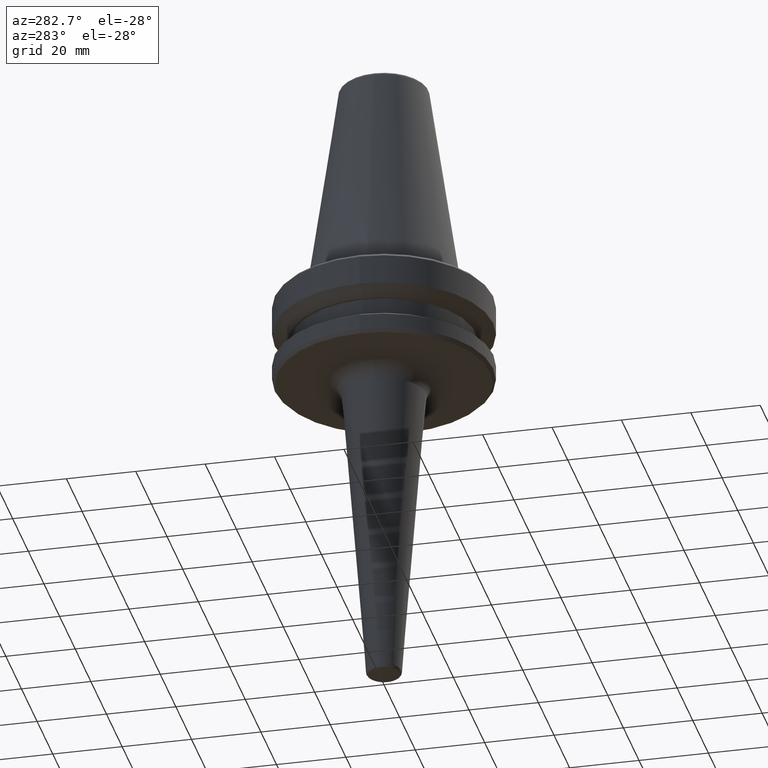
[diagram: clean part render]
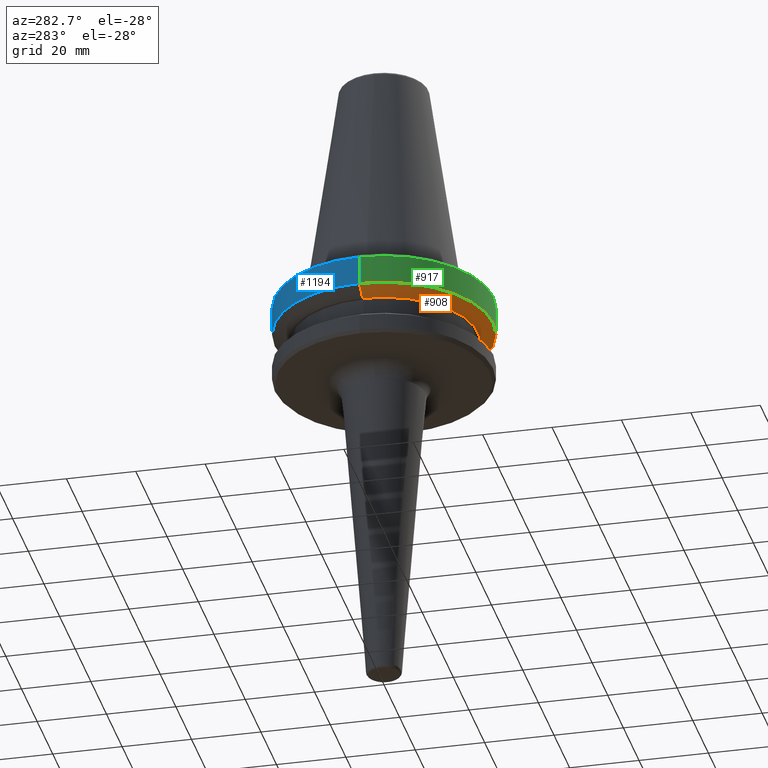
[diagram: same view with three faces highlighted in distinct colors, each labeled with its STEP entity id]
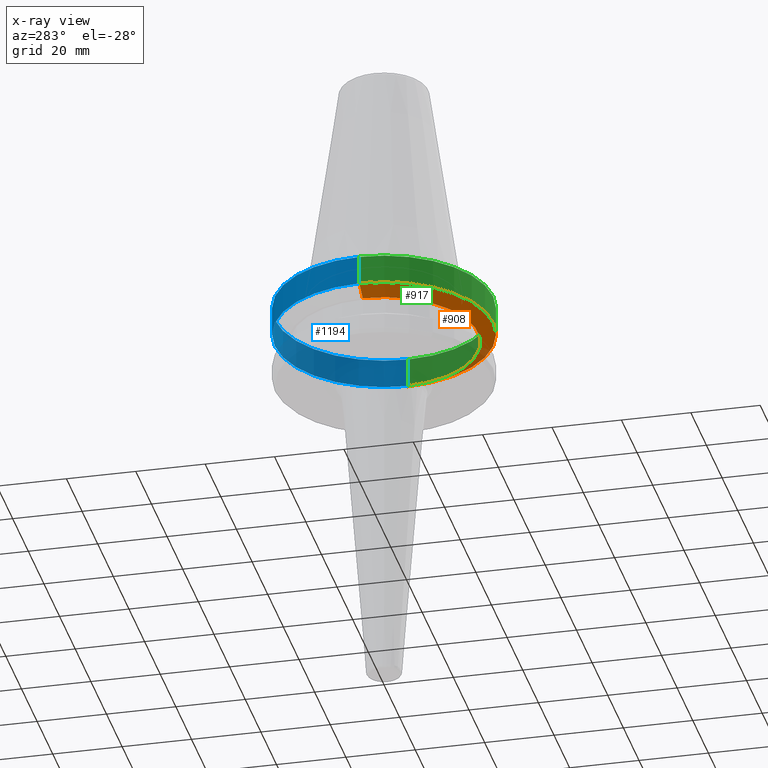
[diagram: x-ray of the same camera — body ghosted, the three highlighted faces saturated]
A machine part, auxiliary view with three faces highlighted in distinct colors.
The next image is the same camera in x-ray (body ghosted, the three faces saturated) — at least one of them is partly hidden behind the body in this view.
Their STEP definitions:

[orange] entity #908 — the highlighted conical surface has half-angle 60 deg.
#39 = DIRECTION ( 'NONE',  ( 1.000000000000000000, 0.0000000000000000000, 0.0000000000000000000 ) ) ;
#85 = ORIENTED_EDGE ( 'NONE', *, *, #1202, .F. ) ;
#91 = ORIENTED_EDGE ( 'NONE', *, *, #1002, .F. ) ;
#97 = CARTESIAN_POINT ( 'NONE',  ( -31.50000000000000000, 3.857637417314162700E-015, -11.59985799368323700 ) ) ;
#103 = CARTESIAN_POINT ( 'NONE',  ( 0.0000000000000000000, 0.0000000000000000000, -11.59985799368323700 ) ) ;
#109 = EDGE_CURVE ( 'NONE', #1214, #842, #918, .T. ) ;
#118 = ORIENTED_EDGE ( 'NONE', *, *, #1123, .T. ) ;
#125 = DIRECTION ( 'NONE',  ( -0.0000000000000000000, -0.0000000000000000000, 1.000000000000000000 ) ) ;
#169 = AXIS2_PLACEMENT_3D ( 'NONE', #1176, #604, #39 ) ;
#200 = VECTOR ( 'NONE', #561, 1000.000000000000100 ) ;
#207 = CONICAL_SURFACE ( 'NONE', #879, 31.50000000000000000, 1.047197551196599400 ) ;
#213 = DIRECTION ( 'NONE',  ( 1.000000000000000000, 0.0000000000000000000, 0.0000000000000000000 ) ) ;
#228 = FACE_OUTER_BOUND ( 'NONE', #1159, .T. ) ;
#266 = CARTESIAN_POINT ( 'NONE',  ( 31.50000000000000000, 0.0000000000000000000, -11.59985799368323700 ) ) ;
#373 = DIRECTION ( 'NONE',  ( -0.0000000000000000000, -0.0000000000000000000, 1.000000000000000000 ) ) ;
#402 = VERTEX_POINT ( 'NONE', #97 ) ;
#503 = CIRCLE ( 'NONE', #619, 27.16962701892216000 ) ;
#561 = DIRECTION ( 'NONE',  ( -0.8660254037844393700, 1.060575238724907800E-016, 0.4999999999999985000 ) ) ;
#604 = DIRECTION ( 'NONE',  ( -0.0000000000000000000, -0.0000000000000000000, 1.000000000000000000 ) ) ;
#619 = AXIS2_PLACEMENT_3D ( 'NONE', #933, #373, #1019 ) ;
#675 = VERTEX_POINT ( 'NONE', #921 ) ;
#699 = ORIENTED_EDGE ( 'NONE', *, *, #109, .T. ) ;
#842 = VERTEX_POINT ( 'NONE', #266 ) ;
#860 = VECTOR ( 'NONE', #1097, 1000.000000000000100 ) ;
#879 = AXIS2_PLACEMENT_3D ( 'NONE', #103, #125, #213 ) ;
#908 = ADVANCED_FACE ( 'NONE', ( #228 ), #207, .T. ) ;
#909 = LINE ( 'NONE', #1141, #200 ) ;
#918 = LINE ( 'NONE', #1082, #860 ) ;
#921 = CARTESIAN_POINT ( 'NONE',  ( -27.16962701892216000, 3.592478546794604700E-015, -14.10000000000000100 ) ) ;
#933 = CARTESIAN_POINT ( 'NONE',  ( 0.0000000000000000000, 0.0000000000000000000, -14.10000000000000100 ) ) ;
#1002 = EDGE_CURVE ( 'NONE', #402, #842, #1055, .T. ) ;
#1019 = DIRECTION ( 'NONE',  ( 1.000000000000000000, 0.0000000000000000000, 0.0000000000000000000 ) ) ;
#1041 = CARTESIAN_POINT ( 'NONE',  ( 27.16962701892216000, 0.0000000000000000000, -14.10000000000000100 ) ) ;
#1055 = CIRCLE ( 'NONE', #169, 31.50000000000000000 ) ;
#1082 = CARTESIAN_POINT ( 'NONE',  ( 31.50000000000000000, 0.0000000000000000000, -11.59985799368323700 ) ) ;
#1097 = DIRECTION ( 'NONE',  ( 0.8660254037844393700, 0.0000000000000000000, 0.4999999999999985000 ) ) ;
#1123 = EDGE_CURVE ( 'NONE', #675, #1214, #503, .T. ) ;
#1141 = CARTESIAN_POINT ( 'NONE',  ( -31.50000000000000000, 3.857637417314162700E-015, -11.59985799368323700 ) ) ;
#1159 = EDGE_LOOP ( 'NONE', ( #85, #118, #699, #91 ) ) ;
#1176 = CARTESIAN_POINT ( 'NONE',  ( 0.0000000000000000000, 0.0000000000000000000, -11.59985799368323700 ) ) ;
#1202 = EDGE_CURVE ( 'NONE', #675, #402, #909, .T. ) ;
#1214 = VERTEX_POINT ( 'NONE', #1041 ) ;

[blue] entity #1194 — the highlighted cylindrical surface (partial cylindrical patch) has radius 31.5 mm, axis along (-0, -0, 1).
#11 = ORIENTED_EDGE ( 'NONE', *, *, #546, .T. ) ;
#70 = CIRCLE ( 'NONE', #318, 31.50000000000000000 ) ;
#97 = CARTESIAN_POINT ( 'NONE',  ( -31.50000000000000000, 3.857637417314162700E-015, -11.59985799368323700 ) ) ;
#128 = EDGE_LOOP ( 'NONE', ( #11, #732, #544, #934 ) ) ;
#266 = CARTESIAN_POINT ( 'NONE',  ( 31.50000000000000000, 0.0000000000000000000, -11.59985799368323700 ) ) ;
#290 = EDGE_CURVE ( 'NONE', #842, #1015, #1063, .T. ) ;
#318 = AXIS2_PLACEMENT_3D ( 'NONE', #328, #1087, #538 ) ;
#320 = EDGE_CURVE ( 'NONE', #1015, #987, #750, .T. ) ;
#328 = CARTESIAN_POINT ( 'NONE',  ( 0.0000000000000000000, 0.0000000000000000000, -11.59985799368323700 ) ) ;
#391 = AXIS2_PLACEMENT_3D ( 'NONE', #1031, #937, #1138 ) ;
#402 = VERTEX_POINT ( 'NONE', #97 ) ;
#476 = CARTESIAN_POINT ( 'NONE',  ( -31.50000000000000700, 3.857637417314163500E-015, -3.165685424949243700 ) ) ;
#515 = AXIS2_PLACEMENT_3D ( 'NONE', #798, #782, #797 ) ;
#534 = CARTESIAN_POINT ( 'NONE',  ( 31.50000000000000000, 0.0000000000000000000, 69.75694866325665100 ) ) ;
#538 = DIRECTION ( 'NONE',  ( 1.000000000000000000, 0.0000000000000000000, 0.0000000000000000000 ) ) ;
#541 = VECTOR ( 'NONE', #667, 1000.000000000000000 ) ;
#544 = ORIENTED_EDGE ( 'NONE', *, *, #320, .F. ) ;
#546 = EDGE_CURVE ( 'NONE', #842, #402, #70, .T. ) ;
#563 = DIRECTION ( 'NONE',  ( -0.0000000000000000000, -0.0000000000000000000, 1.000000000000000000 ) ) ;
#667 = DIRECTION ( 'NONE',  ( -0.0000000000000000000, -0.0000000000000000000, 1.000000000000000000 ) ) ;
#679 = EDGE_CURVE ( 'NONE', #402, #987, #733, .T. ) ;
#701 = CARTESIAN_POINT ( 'NONE',  ( 31.50000000000000700, 0.0000000000000000000, -3.165685424949243700 ) ) ;
#732 = ORIENTED_EDGE ( 'NONE', *, *, #679, .T. ) ;
#733 = LINE ( 'NONE', #1092, #541 ) ;
#750 = CIRCLE ( 'NONE', #515, 31.50000000000000700 ) ;
#774 = VECTOR ( 'NONE', #563, 1000.000000000000000 ) ;
#782 = DIRECTION ( 'NONE',  ( -0.0000000000000000000, -0.0000000000000000000, 1.000000000000000000 ) ) ;
#797 = DIRECTION ( 'NONE',  ( 1.000000000000000000, 0.0000000000000000000, 0.0000000000000000000 ) ) ;
#798 = CARTESIAN_POINT ( 'NONE',  ( 0.0000000000000000000, 0.0000000000000000000, -3.165685424949243700 ) ) ;
#842 = VERTEX_POINT ( 'NONE', #266 ) ;
#934 = ORIENTED_EDGE ( 'NONE', *, *, #290, .F. ) ;
#937 = DIRECTION ( 'NONE',  ( -0.0000000000000000000, -0.0000000000000000000, 1.000000000000000000 ) ) ;
#941 = FACE_OUTER_BOUND ( 'NONE', #128, .T. ) ;
#987 = VERTEX_POINT ( 'NONE', #476 ) ;
#1015 = VERTEX_POINT ( 'NONE', #701 ) ;
#1031 = CARTESIAN_POINT ( 'NONE',  ( 0.0000000000000000000, 0.0000000000000000000, 69.75694866325665100 ) ) ;
#1063 = LINE ( 'NONE', #534, #774 ) ;
#1087 = DIRECTION ( 'NONE',  ( -0.0000000000000000000, -0.0000000000000000000, 1.000000000000000000 ) ) ;
#1092 = CARTESIAN_POINT ( 'NONE',  ( -31.50000000000000000, 3.857637417314162700E-015, 69.75694866325665100 ) ) ;
#1138 = DIRECTION ( 'NONE',  ( 1.000000000000000000, 0.0000000000000000000, 0.0000000000000000000 ) ) ;
#1166 = CYLINDRICAL_SURFACE ( 'NONE', #391, 31.50000000000000000 ) ;
#1194 = ADVANCED_FACE ( 'NONE', ( #941 ), #1166, .T. ) ;

[green] entity #917 — the highlighted cylindrical surface (partial cylindrical patch) has radius 31.5 mm, axis along (-0, -0, 1).
#39 = DIRECTION ( 'NONE',  ( 1.000000000000000000, 0.0000000000000000000, 0.0000000000000000000 ) ) ;
#97 = CARTESIAN_POINT ( 'NONE',  ( -31.50000000000000000, 3.857637417314162700E-015, -11.59985799368323700 ) ) ;
#169 = AXIS2_PLACEMENT_3D ( 'NONE', #1176, #604, #39 ) ;
#266 = CARTESIAN_POINT ( 'NONE',  ( 31.50000000000000000, 0.0000000000000000000, -11.59985799368323700 ) ) ;
#290 = EDGE_CURVE ( 'NONE', #842, #1015, #1063, .T. ) ;
#302 = ORIENTED_EDGE ( 'NONE', *, *, #679, .F. ) ;
#354 = DIRECTION ( 'NONE',  ( -0.0000000000000000000, -0.0000000000000000000, 1.000000000000000000 ) ) ;
#402 = VERTEX_POINT ( 'NONE', #97 ) ;
#459 = DIRECTION ( 'NONE',  ( -0.0000000000000000000, -0.0000000000000000000, 1.000000000000000000 ) ) ;
#476 = CARTESIAN_POINT ( 'NONE',  ( -31.50000000000000700, 3.857637417314163500E-015, -3.165685424949243700 ) ) ;
#500 = CIRCLE ( 'NONE', #523, 31.50000000000000700 ) ;
#523 = AXIS2_PLACEMENT_3D ( 'NONE', #912, #354, #1000 ) ;
#534 = CARTESIAN_POINT ( 'NONE',  ( 31.50000000000000000, 0.0000000000000000000, 69.75694866325665100 ) ) ;
#541 = VECTOR ( 'NONE', #667, 1000.000000000000000 ) ;
#560 = CARTESIAN_POINT ( 'NONE',  ( 0.0000000000000000000, 0.0000000000000000000, 69.75694866325665100 ) ) ;
#563 = DIRECTION ( 'NONE',  ( -0.0000000000000000000, -0.0000000000000000000, 1.000000000000000000 ) ) ;
#604 = DIRECTION ( 'NONE',  ( -0.0000000000000000000, -0.0000000000000000000, 1.000000000000000000 ) ) ;
#641 = DIRECTION ( 'NONE',  ( 1.000000000000000000, 0.0000000000000000000, 0.0000000000000000000 ) ) ;
#667 = DIRECTION ( 'NONE',  ( -0.0000000000000000000, -0.0000000000000000000, 1.000000000000000000 ) ) ;
#679 = EDGE_CURVE ( 'NONE', #402, #987, #733, .T. ) ;
#701 = CARTESIAN_POINT ( 'NONE',  ( 31.50000000000000700, 0.0000000000000000000, -3.165685424949243700 ) ) ;
#720 = EDGE_LOOP ( 'NONE', ( #302, #1032, #1076, #874 ) ) ;
#726 = AXIS2_PLACEMENT_3D ( 'NONE', #560, #459, #641 ) ;
#733 = LINE ( 'NONE', #1092, #541 ) ;
#774 = VECTOR ( 'NONE', #563, 1000.000000000000000 ) ;
#842 = VERTEX_POINT ( 'NONE', #266 ) ;
#874 = ORIENTED_EDGE ( 'NONE', *, *, #1060, .F. ) ;
#912 = CARTESIAN_POINT ( 'NONE',  ( 0.0000000000000000000, 0.0000000000000000000, -3.165685424949243700 ) ) ;
#917 = ADVANCED_FACE ( 'NONE', ( #1204 ), #923, .T. ) ;
#923 = CYLINDRICAL_SURFACE ( 'NONE', #726, 31.50000000000000000 ) ;
#987 = VERTEX_POINT ( 'NONE', #476 ) ;
#1000 = DIRECTION ( 'NONE',  ( 1.000000000000000000, 0.0000000000000000000, 0.0000000000000000000 ) ) ;
#1002 = EDGE_CURVE ( 'NONE', #402, #842, #1055, .T. ) ;
#1015 = VERTEX_POINT ( 'NONE', #701 ) ;
#1032 = ORIENTED_EDGE ( 'NONE', *, *, #1002, .T. ) ;
#1055 = CIRCLE ( 'NONE', #169, 31.50000000000000000 ) ;
#1060 = EDGE_CURVE ( 'NONE', #987, #1015, #500, .T. ) ;
#1063 = LINE ( 'NONE', #534, #774 ) ;
#1076 = ORIENTED_EDGE ( 'NONE', *, *, #290, .T. ) ;
#1092 = CARTESIAN_POINT ( 'NONE',  ( -31.50000000000000000, 3.857637417314162700E-015, 69.75694866325665100 ) ) ;
#1176 = CARTESIAN_POINT ( 'NONE',  ( 0.0000000000000000000, 0.0000000000000000000, -11.59985799368323700 ) ) ;
#1204 = FACE_OUTER_BOUND ( 'NONE', #720, .T. ) ;